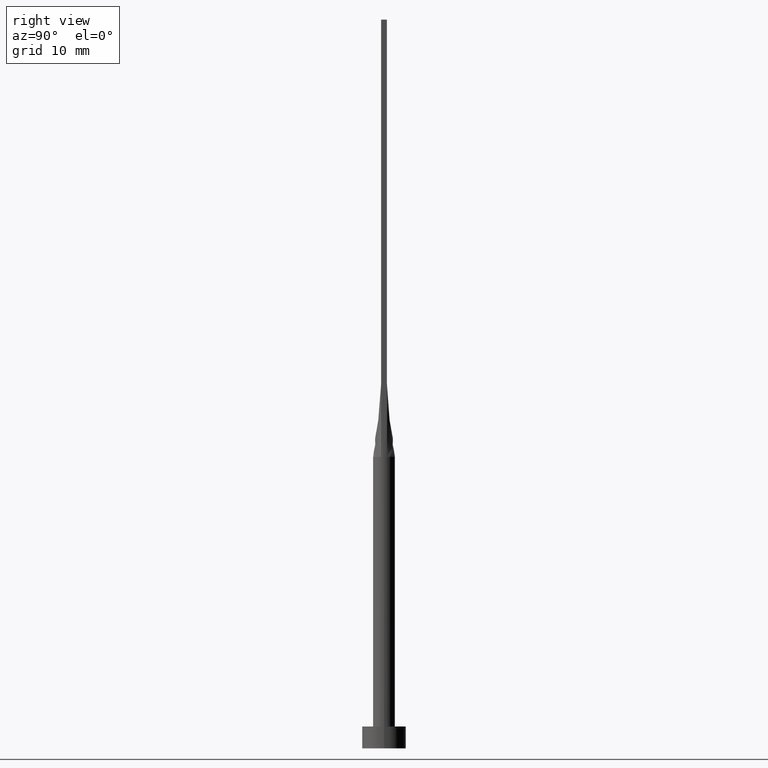
[diagram: clean part render]
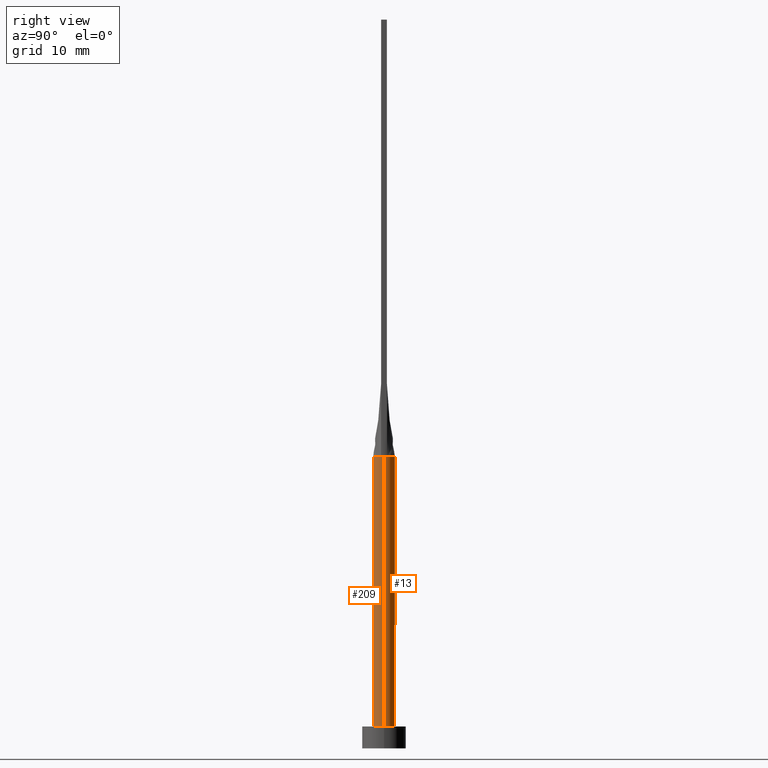
[diagram: same view with one multi-face feature highlighted, each face labeled with its STEP entity id]
A machine part, right view. The highlighted faces form ONE feature: a constant-radius fillet chain: 2 tangent blend faces with common blend radius 1.5 mm. The faces share edges in the B-rep.
Their STEP definitions:
[1] entity #209 (Cylinder):
#3 = VERTEX_POINT ( 'NONE', #345 ) ;
#36 = VERTEX_POINT ( 'NONE', #68 ) ;
#55 = DIRECTION ( 'NONE',  ( 1.000000000000000000, 0.000000000000000000, 0.000000000000000000 ) ) ;
#60 = CARTESIAN_POINT ( 'NONE',  ( -1.442368678646663405, -0.4121057215347019853, 40.00000000000000000 ) ) ;
#68 = CARTESIAN_POINT ( 'NONE',  ( 1.500000000000000000, -9.795443734464536283E-18, 39.99999999999999289 ) ) ;
#90 = FACE_OUTER_BOUND ( 'NONE', #530, .T. ) ;
#94 = DIRECTION ( 'NONE',  ( 0.000000000000000000, 0.000000000000000000, 1.000000000000000000 ) ) ;
#97 = CARTESIAN_POINT ( 'NONE',  ( 1.442393550978850802, -0.4121129214357137083, 40.00000000000000000 ) ) ;
#98 = AXIS2_PLACEMENT_3D ( 'NONE', #383, #559, #157 ) ;
#117 = CARTESIAN_POINT ( 'NONE',  ( 1.500000000000000222, 1.836970198721030181E-16, 40.00000000000000000 ) ) ;
#131 = ORIENTED_EDGE ( 'NONE', *, *, #165, .F. ) ;
#132 = EDGE_CURVE ( 'NONE', #350, #303, #389, .T. ) ;
#140 = CARTESIAN_POINT ( 'NONE',  ( 0.000000000000000000, 0.000000000000000000, 40.00000000000000000 ) ) ;
#157 = DIRECTION ( 'NONE',  ( 1.000000000000000000, 5.329070518200751394E-15, 0.000000000000000000 ) ) ;
#162 = AXIS2_PLACEMENT_3D ( 'NONE', #140, #94, #324 ) ;
#165 = EDGE_CURVE ( 'NONE', #303, #36, #199, .T. ) ;
#166 = DIRECTION ( 'NONE',  ( -1.000000000000000000, 0.000000000000000000, 0.000000000000000000 ) ) ;
#178 = CARTESIAN_POINT ( 'NONE',  ( 1.500000000000000222, 1.836970198721030181E-16, 3.000000000000000000 ) ) ;
#187 = AXIS2_PLACEMENT_3D ( 'NONE', #281, #459, #55 ) ;
#199 = CIRCLE ( 'NONE', #98, 1.500000000000000222 ) ;
#209 = ADVANCED_FACE ( 'NONE', ( #90 ), #564, .T. ) ;
#228 = EDGE_CURVE ( 'NONE', #36, #445, #562, .T. ) ;
#229 = CARTESIAN_POINT ( 'NONE',  ( -1.500000000000000222, 0.000000000000000000, 3.000000000000000000 ) ) ;
#230 = EDGE_CURVE ( 'NONE', #3, #350, #266, .T. ) ;
#231 = ORIENTED_EDGE ( 'NONE', *, *, #132, .F. ) ;
#255 = CARTESIAN_POINT ( 'NONE',  ( 0.000000000000000000, 0.000000000000000000, 40.00000000000000000 ) ) ;
#266 = CIRCLE ( 'NONE', #437, 1.500000000000000222 ) ;
#273 = ORIENTED_EDGE ( 'NONE', *, *, #360, .T. ) ;
#281 = CARTESIAN_POINT ( 'NONE',  ( 0.000000000000000000, 0.000000000000000000, 3.000000000000000000 ) ) ;
#285 = CARTESIAN_POINT ( 'NONE',  ( -1.500000000000000222, 0.000000000000000000, 40.00000000000000000 ) ) ;
#286 = VECTOR ( 'NONE', #462, 1000.000000000000000 ) ;
#294 = CIRCLE ( 'NONE', #187, 1.500000000000000222 ) ;
#303 = VERTEX_POINT ( 'NONE', #97 ) ;
#306 = ORIENTED_EDGE ( 'NONE', *, *, #230, .F. ) ;
#317 = EDGE_CURVE ( 'NONE', #3, #472, #507, .T. ) ;
#322 = DIRECTION ( 'NONE',  ( 0.000000000000000000, 0.000000000000000000, 1.000000000000000000 ) ) ;
#324 = DIRECTION ( 'NONE',  ( 1.000000000000000000, 0.000000000000000000, 0.000000000000000000 ) ) ;
#345 = CARTESIAN_POINT ( 'NONE',  ( -1.500000000000000222, 8.735352324927310277E-17, 39.99999999999999289 ) ) ;
#350 = VERTEX_POINT ( 'NONE', #60 ) ;
#360 = EDGE_CURVE ( 'NONE', #472, #445, #294, .T. ) ;
#383 = CARTESIAN_POINT ( 'NONE',  ( 0.000000000000000000, 0.000000000000000000, 40.00000000000000000 ) ) ;
#389 = CIRCLE ( 'NONE', #162, 1.500000000000000222 ) ;
#400 = DIRECTION ( 'NONE',  ( -0.000000000000000000, -0.000000000000000000, -1.000000000000000000 ) ) ;
#409 = CARTESIAN_POINT ( 'NONE',  ( 0.000000000000000000, 0.000000000000000000, 40.00000000000000000 ) ) ;
#416 = DIRECTION ( 'NONE',  ( 1.000000000000000000, 0.000000000000000000, 0.000000000000000000 ) ) ;
#425 = VECTOR ( 'NONE', #475, 1000.000000000000000 ) ;
#437 = AXIS2_PLACEMENT_3D ( 'NONE', #409, #322, #416 ) ;
#445 = VERTEX_POINT ( 'NONE', #178 ) ;
#459 = DIRECTION ( 'NONE',  ( 0.000000000000000000, 0.000000000000000000, 1.000000000000000000 ) ) ;
#462 = DIRECTION ( 'NONE',  ( -0.000000000000000000, -0.000000000000000000, -1.000000000000000000 ) ) ;
#472 = VERTEX_POINT ( 'NONE', #229 ) ;
#475 = DIRECTION ( 'NONE',  ( -0.000000000000000000, -0.000000000000000000, -1.000000000000000000 ) ) ;
#506 = AXIS2_PLACEMENT_3D ( 'NONE', #255, #400, #166 ) ;
#507 = LINE ( 'NONE', #285, #286 ) ;
#527 = ORIENTED_EDGE ( 'NONE', *, *, #317, .T. ) ;
#530 = EDGE_LOOP ( 'NONE', ( #570, #131, #231, #306, #527, #273 ) ) ;
#559 = DIRECTION ( 'NONE',  ( 0.000000000000000000, 0.000000000000000000, 1.000000000000000000 ) ) ;
#562 = LINE ( 'NONE', #117, #425 ) ;
#564 = CYLINDRICAL_SURFACE ( 'NONE', #506, 1.500000000000000222 ) ;
#570 = ORIENTED_EDGE ( 'NONE', *, *, #228, .F. ) ;
[2] entity #13 (Cylinder):
#1 = AXIS2_PLACEMENT_3D ( 'NONE', #413, #284, #7 ) ;
#3 = VERTEX_POINT ( 'NONE', #345 ) ;
#6 = DIRECTION ( 'NONE',  ( 0.000000000000000000, 0.000000000000000000, 1.000000000000000000 ) ) ;
#7 = DIRECTION ( 'NONE',  ( 1.000000000000000000, 0.000000000000000000, 0.000000000000000000 ) ) ;
#13 = ADVANCED_FACE ( 'NONE', ( #519 ), #73, .T. ) ;
#16 = CARTESIAN_POINT ( 'NONE',  ( 1.212111761082483197, 0.8950936653899574935, 40.00000000000000711 ) ) ;
#24 = CARTESIAN_POINT ( 'NONE',  ( -0.7158926189626803049, 1.330660769095148410, 40.00000000000000000 ) ) ;
#30 = CARTESIAN_POINT ( 'NONE',  ( -0.3767059690781846548, 1.463302066271692015, 39.99999999999999289 ) ) ;
#31 = AXIS2_PLACEMENT_3D ( 'NONE', #164, #469, #393 ) ;
#36 = VERTEX_POINT ( 'NONE', #68 ) ;
#37 = VERTEX_POINT ( 'NONE', #109 ) ;
#68 = CARTESIAN_POINT ( 'NONE',  ( 1.500000000000000000, -9.795443734464536283E-18, 39.99999999999999289 ) ) ;
#69 = EDGE_CURVE ( 'NONE', #37, #3, #81, .T. ) ;
#73 = CYLINDRICAL_SURFACE ( 'NONE', #31, 1.500000000000000222 ) ;
#81 = CIRCLE ( 'NONE', #1, 1.500000000000000222 ) ;
#85 = CARTESIAN_POINT ( 'NONE',  ( -1.359280768448767329, 0.6502025712814717417, 40.00000000000002132 ) ) ;
#87 = CARTESIAN_POINT ( 'NONE',  ( 0.000000000000000000, 0.000000000000000000, 3.000000000000000000 ) ) ;
#91 = CIRCLE ( 'NONE', #240, 1.500000000000000222 ) ;
#103 = CARTESIAN_POINT ( 'NONE',  ( 1.409267053536706671, 0.5276477295819161917, 39.99999999999999289 ) ) ;
#109 = CARTESIAN_POINT ( 'NONE',  ( -1.442387148345315895, 0.4121110244020492197, 40.00000000000000000 ) ) ;
#117 = CARTESIAN_POINT ( 'NONE',  ( 1.500000000000000222, 1.836970198721030181E-16, 40.00000000000000000 ) ) ;
#118 = CARTESIAN_POINT ( 'NONE',  ( -0.1885753531885899226, 1.500000000000000888, 40.00000000000000000 ) ) ;
#137 = ORIENTED_EDGE ( 'NONE', *, *, #464, .F. ) ;
#146 = CARTESIAN_POINT ( 'NONE',  ( 0.7158926189626808601, 1.330660769095147966, 39.99999999999999289 ) ) ;
#161 = CARTESIAN_POINT ( 'NONE',  ( 0.3767059690781852654, 1.463302066271692015, 40.00000000000000000 ) ) ;
#164 = CARTESIAN_POINT ( 'NONE',  ( 0.000000000000000000, 0.000000000000000000, 40.00000000000000000 ) ) ;
#178 = CARTESIAN_POINT ( 'NONE',  ( 1.500000000000000222, 1.836970198721030181E-16, 3.000000000000000000 ) ) ;
#193 = CARTESIAN_POINT ( 'NONE',  ( -1.409267053536706671, 0.5276477295819163027, 40.00000000000000711 ) ) ;
#198 = CARTESIAN_POINT ( 'NONE',  ( 1.442362338805188937, 0.4121038472597355895, 40.00000000000000000 ) ) ;
#220 = CARTESIAN_POINT ( 'NONE',  ( 0.000000000000000000, 0.000000000000000000, 40.00000000000000000 ) ) ;
#221 = ORIENTED_EDGE ( 'NONE', *, *, #317, .F. ) ;
#228 = EDGE_CURVE ( 'NONE', #36, #445, #562, .T. ) ;
#229 = CARTESIAN_POINT ( 'NONE',  ( -1.500000000000000222, 0.000000000000000000, 3.000000000000000000 ) ) ;
#232 = AXIS2_PLACEMENT_3D ( 'NONE', #220, #529, #575 ) ;
#240 = AXIS2_PLACEMENT_3D ( 'NONE', #87, #6, #315 ) ;
#265 = EDGE_LOOP ( 'NONE', ( #398, #484, #520, #221, #536, #137 ) ) ;
#269 = VERTEX_POINT ( 'NONE', #198 ) ;
#272 = CARTESIAN_POINT ( 'NONE',  ( -1.114527776139989212, 1.017390422009414319, 39.99999999999998579 ) ) ;
#284 = DIRECTION ( 'NONE',  ( 0.000000000000000000, 0.000000000000000000, 1.000000000000000000 ) ) ;
#285 = CARTESIAN_POINT ( 'NONE',  ( -1.500000000000000222, 0.000000000000000000, 40.00000000000000000 ) ) ;
#286 = VECTOR ( 'NONE', #462, 1000.000000000000000 ) ;
#315 = DIRECTION ( 'NONE',  ( 1.000000000000000000, 0.000000000000000000, 0.000000000000000000 ) ) ;
#317 = EDGE_CURVE ( 'NONE', #3, #472, #507, .T. ) ;
#318 = CARTESIAN_POINT ( 'NONE',  ( -1.442387148345315895, 0.4121110244020492197, 40.00000000000000000 ) ) ;
#345 = CARTESIAN_POINT ( 'NONE',  ( -1.500000000000000222, 8.735352324927310277E-17, 39.99999999999999289 ) ) ;
#353 = B_SPLINE_CURVE_WITH_KNOTS ( 'NONE', 3,
 ( #447, #103, #427, #16, #429, #554, #146, #161, #518, #118, #30, #24, #557, #272, #372, #85, #193, #318 ),
 .UNSPECIFIED., .F., .F.,
 ( 4, 2, 2, 2, 2, 2, 2, 2, 4 ),
 ( 0.000000000000000000, 0.1250000000000000833, 0.2500000000000001665, 0.3750000000000001110, 0.5000000000000001110, 0.6250000000000002220, 0.7500000000000001110, 0.8750000000000001110, 1.000000000000000000 ),
 .UNSPECIFIED. ) ;
#372 = CARTESIAN_POINT ( 'NONE',  ( -1.212111761082482975, 0.8950936653899578266, 40.00000000000001421 ) ) ;
#388 = EDGE_CURVE ( 'NONE', #36, #269, #487, .T. ) ;
#393 = DIRECTION ( 'NONE',  ( -1.000000000000000000, 0.000000000000000000, 0.000000000000000000 ) ) ;
#398 = ORIENTED_EDGE ( 'NONE', *, *, #388, .F. ) ;
#413 = CARTESIAN_POINT ( 'NONE',  ( 0.000000000000000000, 0.000000000000000000, 40.00000000000000000 ) ) ;
#425 = VECTOR ( 'NONE', #475, 1000.000000000000000 ) ;
#427 = CARTESIAN_POINT ( 'NONE',  ( 1.359280768448766663, 0.6502025712814714087, 40.00000000000000711 ) ) ;
#429 = CARTESIAN_POINT ( 'NONE',  ( 1.114527776139990101, 1.017390422009413431, 39.99999999999997868 ) ) ;
#445 = VERTEX_POINT ( 'NONE', #178 ) ;
#447 = CARTESIAN_POINT ( 'NONE',  ( 1.442362338805188937, 0.4121038472597355895, 40.00000000000000000 ) ) ;
#462 = DIRECTION ( 'NONE',  ( -0.000000000000000000, -0.000000000000000000, -1.000000000000000000 ) ) ;
#464 = EDGE_CURVE ( 'NONE', #269, #37, #353, .T. ) ;
#469 = DIRECTION ( 'NONE',  ( -0.000000000000000000, -0.000000000000000000, -1.000000000000000000 ) ) ;
#472 = VERTEX_POINT ( 'NONE', #229 ) ;
#475 = DIRECTION ( 'NONE',  ( -0.000000000000000000, -0.000000000000000000, -1.000000000000000000 ) ) ;
#484 = ORIENTED_EDGE ( 'NONE', *, *, #228, .T. ) ;
#487 = CIRCLE ( 'NONE', #232, 1.500000000000000222 ) ;
#507 = LINE ( 'NONE', #285, #286 ) ;
#518 = CARTESIAN_POINT ( 'NONE',  ( 0.1885753531885901724, 1.500000000000000666, 40.00000000000000000 ) ) ;
#519 = FACE_OUTER_BOUND ( 'NONE', #265, .T. ) ;
#520 = ORIENTED_EDGE ( 'NONE', *, *, #524, .T. ) ;
#524 = EDGE_CURVE ( 'NONE', #445, #472, #91, .T. ) ;
#529 = DIRECTION ( 'NONE',  ( 0.000000000000000000, 0.000000000000000000, 1.000000000000000000 ) ) ;
#536 = ORIENTED_EDGE ( 'NONE', *, *, #69, .F. ) ;
#554 = CARTESIAN_POINT ( 'NONE',  ( 0.8665786268839186235, 1.235433898681765008, 39.99999999999998579 ) ) ;
#557 = CARTESIAN_POINT ( 'NONE',  ( -0.8665786268839184014, 1.235433898681765896, 40.00000000000000000 ) ) ;
#562 = LINE ( 'NONE', #117, #425 ) ;
#575 = DIRECTION ( 'NONE',  ( 1.000000000000000000, 0.000000000000000000, 0.000000000000000000 ) ) ;